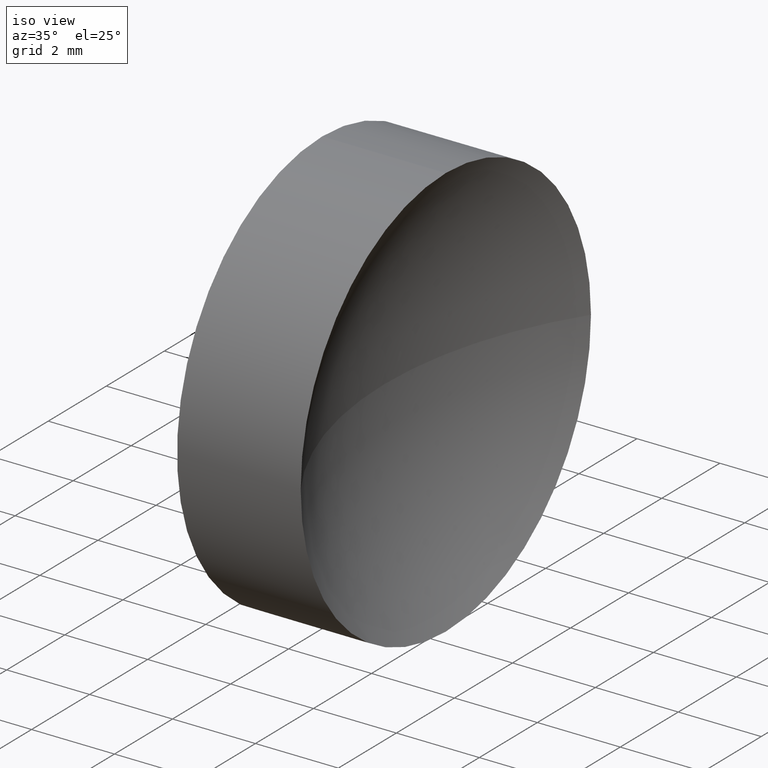
[diagram: clean part render]
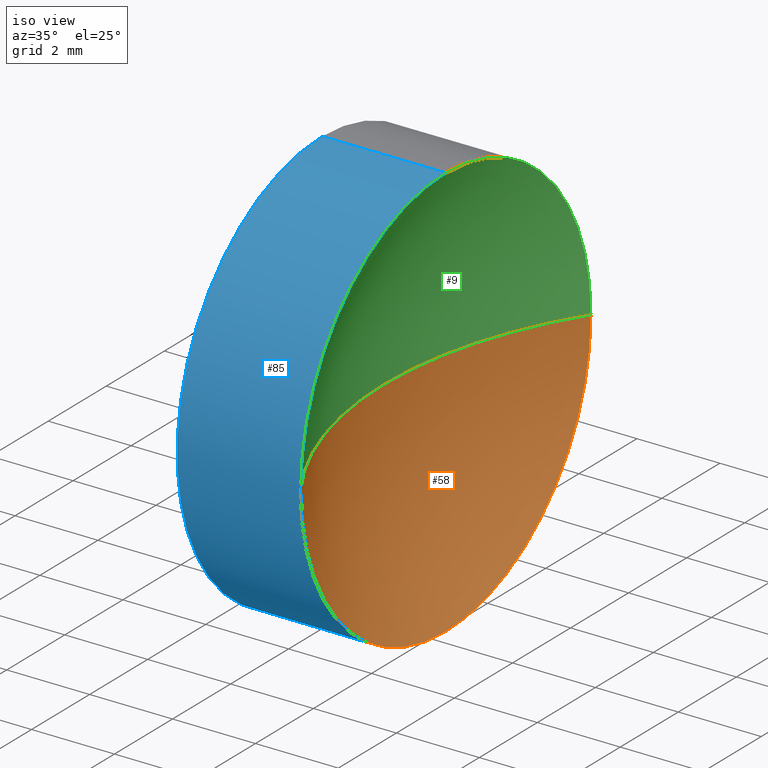
[diagram: same view with three faces highlighted in distinct colors, each labeled with its STEP entity id]
A machine part, iso view with three faces highlighted in distinct colors.
Their STEP definitions:

[orange] entity #58 — the highlighted spherical surface has radius 9.17 mm.
#1 = DIRECTION ( 'NONE',  ( -1.000000000000000000, 0.0000000000000000000, 0.0000000000000000000 ) ) ;
#3 = CARTESIAN_POINT ( 'NONE',  ( 44.34889685878980000, 26.06225218280608000, 0.0000000000000000000 ) ) ;
#11 = VERTEX_POINT ( 'NONE', #69 ) ;
#13 = AXIS2_PLACEMENT_3D ( 'NONE', #151, #124, #107 ) ;
#15 = ORIENTED_EDGE ( 'NONE', *, *, #160, .T. ) ;
#18 = DIRECTION ( 'NONE',  ( 0.0000000000000000000, -1.224646799147353200E-016, 1.000000000000000000 ) ) ;
#21 = ORIENTED_EDGE ( 'NONE', *, *, #141, .F. ) ;
#26 = DIRECTION ( 'NONE',  ( 0.0000000000000000000, 0.0000000000000000000, 1.000000000000000000 ) ) ;
#34 = AXIS2_PLACEMENT_3D ( 'NONE', #150, #18, #78 ) ;
#39 = CARTESIAN_POINT ( 'NONE',  ( 44.34889685878980000, 26.06225218280608000, -4.999999999999993800 ) ) ;
#40 = CARTESIAN_POINT ( 'NONE',  ( 44.34889685878980000, 31.06225218280607300, 6.123233995736756400E-016 ) ) ;
#44 = DIRECTION ( 'NONE',  ( -1.000000000000000000, -0.0000000000000000000, -0.0000000000000000000 ) ) ;
#52 = AXIS2_PLACEMENT_3D ( 'NONE', #53, #143, #1 ) ;
#53 = CARTESIAN_POINT ( 'NONE',  ( 52.03582732549756400, 26.06225218280608000, 0.0000000000000000000 ) ) ;
#54 = ORIENTED_EDGE ( 'NONE', *, *, #96, .F. ) ;
#56 = CARTESIAN_POINT ( 'NONE',  ( 44.34889685878980000, 21.06225218280608800, 0.0000000000000000000 ) ) ;
#58 = ADVANCED_FACE ( 'NONE', ( #176 ), #138, .F. ) ;
#68 = EDGE_LOOP ( 'NONE', ( #139, #15, #54, #21 ) ) ;
#69 = CARTESIAN_POINT ( 'NONE',  ( 42.86582732549757000, 26.06225218280608000, 0.0000000000000000000 ) ) ;
#78 = DIRECTION ( 'NONE',  ( 0.0000000000000000000, -1.000000000000000000, -1.224646799147353000E-016 ) ) ;
#96 = EDGE_CURVE ( 'NONE', #134, #11, #179, .T. ) ;
#100 = VERTEX_POINT ( 'NONE', #40 ) ;
#107 = DIRECTION ( 'NONE',  ( 0.0000000000000000000, 0.0000000000000000000, 1.000000000000000000 ) ) ;
#112 = CIRCLE ( 'NONE', #13, 4.999999999999993800 ) ;
#116 = VERTEX_POINT ( 'NONE', #39 ) ;
#120 = DIRECTION ( 'NONE',  ( 0.0000000000000000000, -1.000000000000000000, 0.0000000000000000000 ) ) ;
#121 = CIRCLE ( 'NONE', #178, 4.999999999999993800 ) ;
#123 = DIRECTION ( 'NONE',  ( 0.0000000000000000000, 0.0000000000000000000, 1.000000000000000000 ) ) ;
#124 = DIRECTION ( 'NONE',  ( -1.000000000000000000, -0.0000000000000000000, -0.0000000000000000000 ) ) ;
#134 = VERTEX_POINT ( 'NONE', #56 ) ;
#138 = SPHERICAL_SURFACE ( 'NONE', #167, 9.169999999999998200 ) ;
#139 = ORIENTED_EDGE ( 'NONE', *, *, #155, .F. ) ;
#141 = EDGE_CURVE ( 'NONE', #116, #134, #121, .T. ) ;
#143 = DIRECTION ( 'NONE',  ( 0.0000000000000000000, 0.0000000000000000000, -1.000000000000000000 ) ) ;
#150 = CARTESIAN_POINT ( 'NONE',  ( 52.03582732549756400, 26.06225218280608000, 0.0000000000000000000 ) ) ;
#151 = CARTESIAN_POINT ( 'NONE',  ( 44.34889685878980000, 26.06225218280608000, 0.0000000000000000000 ) ) ;
#155 = EDGE_CURVE ( 'NONE', #100, #116, #112, .T. ) ;
#160 = EDGE_CURVE ( 'NONE', #100, #11, #175, .T. ) ;
#167 = AXIS2_PLACEMENT_3D ( 'NONE', #183, #26, #120 ) ;
#175 = CIRCLE ( 'NONE', #34, 9.169999999999998200 ) ;
#176 = FACE_OUTER_BOUND ( 'NONE', #68, .T. ) ;
#178 = AXIS2_PLACEMENT_3D ( 'NONE', #3, #44, #123 ) ;
#179 = CIRCLE ( 'NONE', #52, 9.169999999999998200 ) ;
#183 = CARTESIAN_POINT ( 'NONE',  ( 52.03582732549756400, 26.06225218280608000, 0.0000000000000000000 ) ) ;

[blue] entity #85 — the highlighted cylindrical surface (partial cylindrical patch) has radius 5 mm, axis along (-1, -0, -0).
#2 = DIRECTION ( 'NONE',  ( -1.000000000000000000, -0.0000000000000000000, -0.0000000000000000000 ) ) ;
#3 = CARTESIAN_POINT ( 'NONE',  ( 44.34889685878980000, 26.06225218280608000, 0.0000000000000000000 ) ) ;
#7 = AXIS2_PLACEMENT_3D ( 'NONE', #131, #122, #137 ) ;
#12 = CARTESIAN_POINT ( 'NONE',  ( 41.36582732549757700, 26.06225218280608000, 0.0000000000000000000 ) ) ;
#14 = DIRECTION ( 'NONE',  ( 0.0000000000000000000, 0.0000000000000000000, 1.000000000000000000 ) ) ;
#22 = AXIS2_PLACEMENT_3D ( 'NONE', #12, #118, #14 ) ;
#23 = ORIENTED_EDGE ( 'NONE', *, *, #45, .F. ) ;
#28 = VERTEX_POINT ( 'NONE', #72 ) ;
#30 = ORIENTED_EDGE ( 'NONE', *, *, #87, .T. ) ;
#35 = VECTOR ( 'NONE', #2, 1000.000000000000000 ) ;
#39 = CARTESIAN_POINT ( 'NONE',  ( 44.34889685878980000, 26.06225218280608000, -4.999999999999993800 ) ) ;
#44 = DIRECTION ( 'NONE',  ( -1.000000000000000000, -0.0000000000000000000, -0.0000000000000000000 ) ) ;
#45 = EDGE_CURVE ( 'NONE', #108, #97, #154, .T. ) ;
#49 = CYLINDRICAL_SURFACE ( 'NONE', #135, 4.999999999999995600 ) ;
#55 = CARTESIAN_POINT ( 'NONE',  ( 39.73650001336414300, 26.06225218280608000, 4.999999999999995600 ) ) ;
#56 = CARTESIAN_POINT ( 'NONE',  ( 44.34889685878980000, 21.06225218280608800, 0.0000000000000000000 ) ) ;
#57 = ORIENTED_EDGE ( 'NONE', *, *, #119, .F. ) ;
#65 = ORIENTED_EDGE ( 'NONE', *, *, #141, .T. ) ;
#72 = CARTESIAN_POINT ( 'NONE',  ( 44.34889685878980000, 26.06225218280608000, 4.999999999999993800 ) ) ;
#75 = FACE_OUTER_BOUND ( 'NONE', #128, .T. ) ;
#84 = ORIENTED_EDGE ( 'NONE', *, *, #145, .T. ) ;
#85 = ADVANCED_FACE ( 'NONE', ( #75 ), #49, .T. ) ;
#87 = EDGE_CURVE ( 'NONE', #28, #97, #142, .T. ) ;
#88 = CARTESIAN_POINT ( 'NONE',  ( 41.36582732549757700, 26.06225218280608000, 4.999999999999997300 ) ) ;
#89 = CARTESIAN_POINT ( 'NONE',  ( 39.73650001336414300, 26.06225218280608000, -4.999999999999995600 ) ) ;
#97 = VERTEX_POINT ( 'NONE', #88 ) ;
#101 = CARTESIAN_POINT ( 'NONE',  ( 39.73650001336414300, 26.06225218280608000, 0.0000000000000000000 ) ) ;
#105 = CIRCLE ( 'NONE', #7, 4.999999999999993800 ) ;
#108 = VERTEX_POINT ( 'NONE', #157 ) ;
#115 = LINE ( 'NONE', #89, #35 ) ;
#116 = VERTEX_POINT ( 'NONE', #39 ) ;
#118 = DIRECTION ( 'NONE',  ( -1.000000000000000000, -0.0000000000000000000, -0.0000000000000000000 ) ) ;
#119 = EDGE_CURVE ( 'NONE', #116, #108, #115, .T. ) ;
#121 = CIRCLE ( 'NONE', #178, 4.999999999999993800 ) ;
#122 = DIRECTION ( 'NONE',  ( -1.000000000000000000, -0.0000000000000000000, -0.0000000000000000000 ) ) ;
#123 = DIRECTION ( 'NONE',  ( 0.0000000000000000000, 0.0000000000000000000, 1.000000000000000000 ) ) ;
#128 = EDGE_LOOP ( 'NONE', ( #57, #65, #84, #30, #23 ) ) ;
#131 = CARTESIAN_POINT ( 'NONE',  ( 44.34889685878980000, 26.06225218280608000, 0.0000000000000000000 ) ) ;
#134 = VERTEX_POINT ( 'NONE', #56 ) ;
#135 = AXIS2_PLACEMENT_3D ( 'NONE', #101, #162, #185 ) ;
#137 = DIRECTION ( 'NONE',  ( 0.0000000000000000000, 0.0000000000000000000, 1.000000000000000000 ) ) ;
#141 = EDGE_CURVE ( 'NONE', #116, #134, #121, .T. ) ;
#142 = LINE ( 'NONE', #55, #147 ) ;
#145 = EDGE_CURVE ( 'NONE', #134, #28, #105, .T. ) ;
#147 = VECTOR ( 'NONE', #168, 1000.000000000000000 ) ;
#154 = CIRCLE ( 'NONE', #22, 4.999999999999997300 ) ;
#157 = CARTESIAN_POINT ( 'NONE',  ( 41.36582732549757700, 26.06225218280608000, -4.999999999999998200 ) ) ;
#162 = DIRECTION ( 'NONE',  ( -1.000000000000000000, -0.0000000000000000000, -0.0000000000000000000 ) ) ;
#168 = DIRECTION ( 'NONE',  ( -1.000000000000000000, -0.0000000000000000000, -0.0000000000000000000 ) ) ;
#178 = AXIS2_PLACEMENT_3D ( 'NONE', #3, #44, #123 ) ;
#185 = DIRECTION ( 'NONE',  ( 0.0000000000000000000, 0.0000000000000000000, 1.000000000000000000 ) ) ;

[green] entity #9 — the highlighted spherical surface has radius 9.17 mm.
#1 = DIRECTION ( 'NONE',  ( -1.000000000000000000, 0.0000000000000000000, 0.0000000000000000000 ) ) ;
#7 = AXIS2_PLACEMENT_3D ( 'NONE', #131, #122, #137 ) ;
#9 = ADVANCED_FACE ( 'NONE', ( #36 ), #98, .F. ) ;
#11 = VERTEX_POINT ( 'NONE', #69 ) ;
#17 = EDGE_LOOP ( 'NONE', ( #64, #158, #82, #166 ) ) ;
#18 = DIRECTION ( 'NONE',  ( 0.0000000000000000000, -1.224646799147353200E-016, 1.000000000000000000 ) ) ;
#28 = VERTEX_POINT ( 'NONE', #72 ) ;
#34 = AXIS2_PLACEMENT_3D ( 'NONE', #150, #18, #78 ) ;
#36 = FACE_OUTER_BOUND ( 'NONE', #17, .T. ) ;
#40 = CARTESIAN_POINT ( 'NONE',  ( 44.34889685878980000, 31.06225218280607300, 6.123233995736756400E-016 ) ) ;
#42 = AXIS2_PLACEMENT_3D ( 'NONE', #169, #148, #106 ) ;
#43 = DIRECTION ( 'NONE',  ( 0.0000000000000000000, -1.000000000000000000, 0.0000000000000000000 ) ) ;
#52 = AXIS2_PLACEMENT_3D ( 'NONE', #53, #143, #1 ) ;
#53 = CARTESIAN_POINT ( 'NONE',  ( 52.03582732549756400, 26.06225218280608000, 0.0000000000000000000 ) ) ;
#56 = CARTESIAN_POINT ( 'NONE',  ( 44.34889685878980000, 21.06225218280608800, 0.0000000000000000000 ) ) ;
#64 = ORIENTED_EDGE ( 'NONE', *, *, #160, .F. ) ;
#69 = CARTESIAN_POINT ( 'NONE',  ( 42.86582732549757000, 26.06225218280608000, 0.0000000000000000000 ) ) ;
#72 = CARTESIAN_POINT ( 'NONE',  ( 44.34889685878980000, 26.06225218280608000, 4.999999999999993800 ) ) ;
#78 = DIRECTION ( 'NONE',  ( 0.0000000000000000000, -1.000000000000000000, -1.224646799147353000E-016 ) ) ;
#79 = AXIS2_PLACEMENT_3D ( 'NONE', #164, #103, #43 ) ;
#82 = ORIENTED_EDGE ( 'NONE', *, *, #145, .F. ) ;
#96 = EDGE_CURVE ( 'NONE', #134, #11, #179, .T. ) ;
#98 = SPHERICAL_SURFACE ( 'NONE', #79, 9.169999999999998200 ) ;
#100 = VERTEX_POINT ( 'NONE', #40 ) ;
#103 = DIRECTION ( 'NONE',  ( 0.0000000000000000000, 0.0000000000000000000, 1.000000000000000000 ) ) ;
#105 = CIRCLE ( 'NONE', #7, 4.999999999999993800 ) ;
#106 = DIRECTION ( 'NONE',  ( 0.0000000000000000000, 0.0000000000000000000, 1.000000000000000000 ) ) ;
#109 = EDGE_CURVE ( 'NONE', #28, #100, #140, .T. ) ;
#122 = DIRECTION ( 'NONE',  ( -1.000000000000000000, -0.0000000000000000000, -0.0000000000000000000 ) ) ;
#131 = CARTESIAN_POINT ( 'NONE',  ( 44.34889685878980000, 26.06225218280608000, 0.0000000000000000000 ) ) ;
#134 = VERTEX_POINT ( 'NONE', #56 ) ;
#137 = DIRECTION ( 'NONE',  ( 0.0000000000000000000, 0.0000000000000000000, 1.000000000000000000 ) ) ;
#140 = CIRCLE ( 'NONE', #42, 4.999999999999993800 ) ;
#143 = DIRECTION ( 'NONE',  ( 0.0000000000000000000, 0.0000000000000000000, -1.000000000000000000 ) ) ;
#145 = EDGE_CURVE ( 'NONE', #134, #28, #105, .T. ) ;
#148 = DIRECTION ( 'NONE',  ( -1.000000000000000000, -0.0000000000000000000, -0.0000000000000000000 ) ) ;
#150 = CARTESIAN_POINT ( 'NONE',  ( 52.03582732549756400, 26.06225218280608000, 0.0000000000000000000 ) ) ;
#158 = ORIENTED_EDGE ( 'NONE', *, *, #109, .F. ) ;
#160 = EDGE_CURVE ( 'NONE', #100, #11, #175, .T. ) ;
#164 = CARTESIAN_POINT ( 'NONE',  ( 52.03582732549756400, 26.06225218280608000, 0.0000000000000000000 ) ) ;
#166 = ORIENTED_EDGE ( 'NONE', *, *, #96, .T. ) ;
#169 = CARTESIAN_POINT ( 'NONE',  ( 44.34889685878980000, 26.06225218280608000, 0.0000000000000000000 ) ) ;
#175 = CIRCLE ( 'NONE', #34, 9.169999999999998200 ) ;
#179 = CIRCLE ( 'NONE', #52, 9.169999999999998200 ) ;